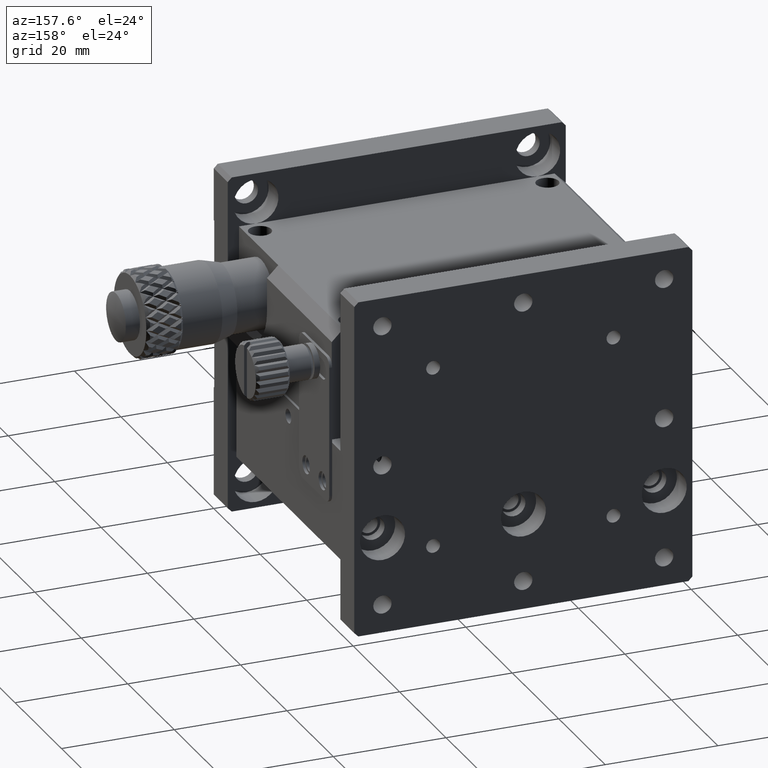
[diagram: clean part render]
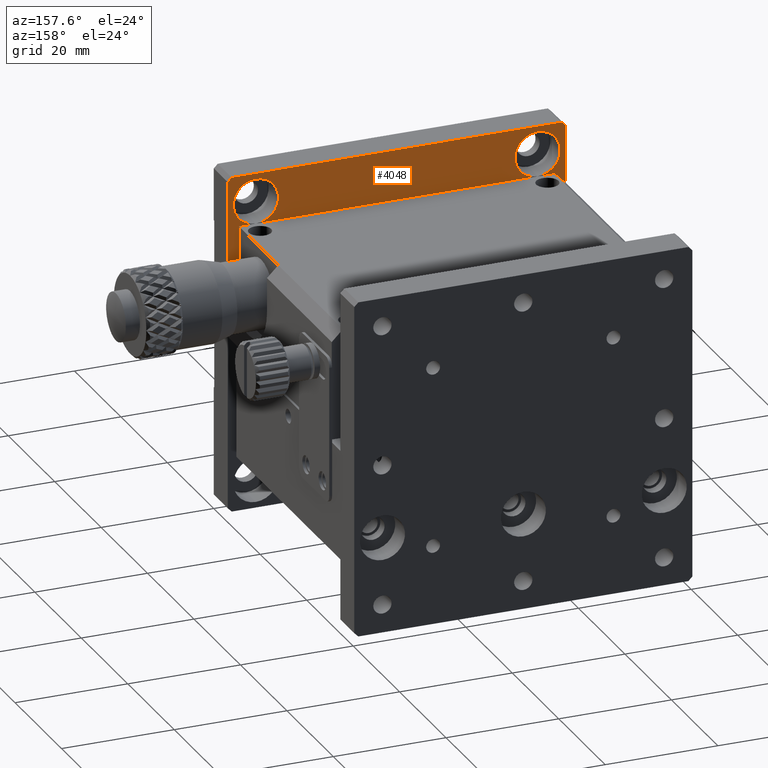
[diagram: same view with one face highlighted and labeled with its STEP entity id]
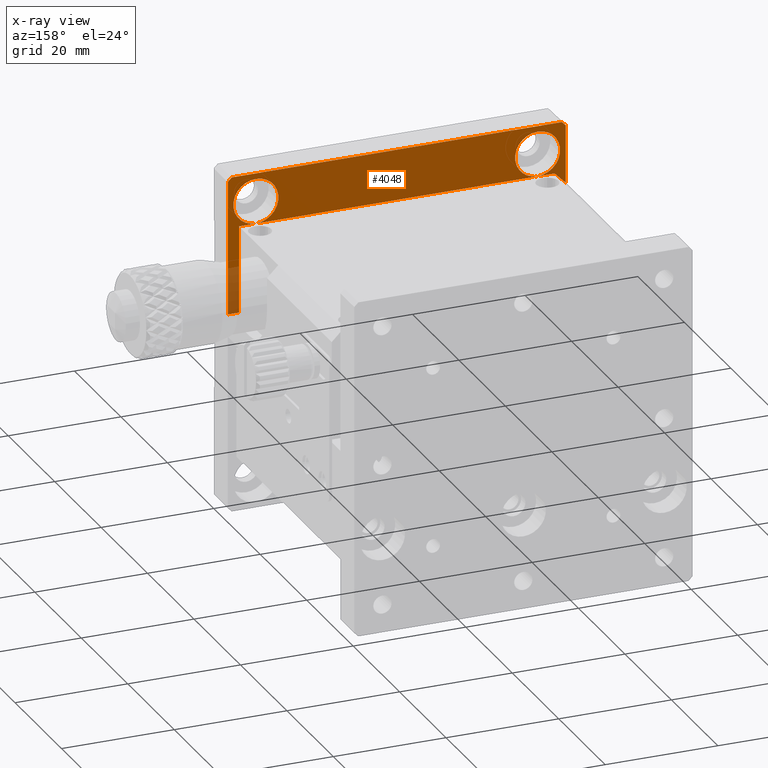
[diagram: x-ray of the same camera — body ghosted, the highlighted face saturated]
A machine part, auxiliary view. The second image highlights one B-rep face of the part: STEP entity #4048.
The next image is the same camera in x-ray: the body ghosted, the highlighted face saturated — about 3% of this face is hidden behind the body in this view.
In plain terms, the highlighted planar face has unit normal (0, 1, 0).
Its self-contained STEP definition (entity closure, byte-faithful):
#43 = EDGE_CURVE ( 'NONE', #24617, #12049, #9870, .T. ) ;
#1054 = VERTEX_POINT ( 'NONE', #20090 ) ;
#1390 = CARTESIAN_POINT ( 'NONE',  ( 1.999999999999970024, 6.000000000000000000, -9.000000000000001776 ) ) ;
#1811 = LINE ( 'NONE', #1390, #11401 ) ;
#1817 = CARTESIAN_POINT ( 'NONE',  ( 0.7099999999999999645, 6.000000000000000000, 5.421010862427511077E-17 ) ) ;
#2042 = CARTESIAN_POINT ( 'NONE',  ( 60.00000000000000000, 6.000000000000000000, -0.7099999999999999645 ) ) ;
#2152 = LINE ( 'NONE', #21208, #17307 ) ;
#2483 = CARTESIAN_POINT ( 'NONE',  ( 0.000000000000000000, 6.000000000000000000, -24.50000000000000000 ) ) ;
#2704 = DIRECTION ( 'NONE',  ( 0.000000000000000000, -0.000000000000000000, 1.000000000000000000 ) ) ;
#3327 = LINE ( 'NONE', #20554, #23313 ) ;
#4048 = ADVANCED_FACE ( 'NONE', ( #14205, #6013, #12673 ), #27042, .T. ) ;
#4438 = LINE ( 'NONE', #2483, #18677 ) ;
#5033 = EDGE_CURVE ( 'NONE', #7636, #6021, #3327, .T. ) ;
#5160 = CARTESIAN_POINT ( 'NONE',  ( 59.28999999999999915, 6.000000000000000000, 2.710505431213749992E-17 ) ) ;
#5217 = EDGE_CURVE ( 'NONE', #5559, #22009, #6019, .T. ) ;
#5559 = VERTEX_POINT ( 'NONE', #21920 ) ;
#5787 = VECTOR ( 'NONE', #7748, 1000.000000000000114 ) ;
#6013 = FACE_BOUND ( 'NONE', #25794, .T. ) ;
#6019 = LINE ( 'NONE', #14493, #9797 ) ;
#6021 = VERTEX_POINT ( 'NONE', #16210 ) ;
#6283 = CARTESIAN_POINT ( 'NONE',  ( 0.000000000000000000, 6.000000000000000000, -11.00000000000000000 ) ) ;
#6650 = EDGE_CURVE ( 'NONE', #26270, #5559, #25143, .T. ) ;
#7385 = AXIS2_PLACEMENT_3D ( 'NONE', #27091, #26810, #20880 ) ;
#7632 = EDGE_CURVE ( 'NONE', #22009, #24617, #11921, .T. ) ;
#7636 = VERTEX_POINT ( 'NONE', #18950 ) ;
#7748 = DIRECTION ( 'NONE',  ( 0.7071067811865452413, 0.000000000000000000, -0.7071067811865499042 ) ) ;
#7862 = DIRECTION ( 'NONE',  ( 0.7071067811865470176, 0.000000000000000000, 0.7071067811865481278 ) ) ;
#9216 = VECTOR ( 'NONE', #14577, 1000.000000000000000 ) ;
#9218 = LINE ( 'NONE', #15407, #20842 ) ;
#9274 = ORIENTED_EDGE ( 'NONE', *, *, #20244, .T. ) ;
#9442 = VERTEX_POINT ( 'NONE', #12684 ) ;
#9797 = VECTOR ( 'NONE', #7862, 1000.000000000000000 ) ;
#9870 = LINE ( 'NONE', #12129, #5787 ) ;
#11105 = EDGE_CURVE ( 'NONE', #11710, #11710, #12369, .T. ) ;
#11125 = DIRECTION ( 'NONE',  ( -1.000000000000000000, -0.000000000000000000, 0.000000000000000000 ) ) ;
#11293 = ORIENTED_EDGE ( 'NONE', *, *, #16885, .T. ) ;
#11401 = VECTOR ( 'NONE', #14511, 1000.000000000000000 ) ;
#11710 = VERTEX_POINT ( 'NONE', #22552 ) ;
#11878 = ORIENTED_EDGE ( 'NONE', *, *, #5217, .T. ) ;
#11921 = LINE ( 'NONE', #18814, #24286 ) ;
#12049 = VERTEX_POINT ( 'NONE', #2042 ) ;
#12093 = DIRECTION ( 'NONE',  ( 0.000000000000000000, -0.000000000000000000, 1.000000000000000000 ) ) ;
#12129 = CARTESIAN_POINT ( 'NONE',  ( 59.28999999999999915, 6.000000000000000000, 0.000000000000000000 ) ) ;
#12178 = DIRECTION ( 'NONE',  ( 0.000000000000000000, 0.000000000000000000, -1.000000000000000000 ) ) ;
#12369 = CIRCLE ( 'NONE', #7385, 4.000000000000022204 ) ;
#12673 = FACE_OUTER_BOUND ( 'NONE', #18596, .T. ) ;
#12684 = CARTESIAN_POINT ( 'NONE',  ( 58.00000000000000000, 6.000000000000000000, -24.50000000000000000 ) ) ;
#12708 = VERTEX_POINT ( 'NONE', #24346 ) ;
#13799 = DIRECTION ( 'NONE',  ( -1.000000000000000000, -0.000000000000000000, 0.000000000000000000 ) ) ;
#14094 = ORIENTED_EDGE ( 'NONE', *, *, #25784, .T. ) ;
#14205 = FACE_BOUND ( 'NONE', #24687, .T. ) ;
#14493 = CARTESIAN_POINT ( 'NONE',  ( 0.000000000000000000, 6.000000000000000000, -0.7100000000000009637 ) ) ;
#14511 = DIRECTION ( 'NONE',  ( -0.7071067811865425767, 0.000000000000000000, -0.7071067811865525687 ) ) ;
#14536 = ORIENTED_EDGE ( 'NONE', *, *, #7632, .T. ) ;
#14577 = DIRECTION ( 'NONE',  ( 0.000000000000000000, -0.000000000000000000, 1.000000000000000000 ) ) ;
#15407 = CARTESIAN_POINT ( 'NONE',  ( 58.00000000000000000, 6.000000000000000000, 0.000000000000000000 ) ) ;
#16210 = CARTESIAN_POINT ( 'NONE',  ( 1.999999999999970024, 6.000000000000000000, -9.000000000000001776 ) ) ;
#16805 = CARTESIAN_POINT ( 'NONE',  ( 5.000000000000000000, 6.000000000000000000, -5.000000000000000000 ) ) ;
#16885 = EDGE_CURVE ( 'NONE', #1054, #1054, #25270, .T. ) ;
#17307 = VECTOR ( 'NONE', #18804, 1000.000000000000000 ) ;
#17448 = ORIENTED_EDGE ( 'NONE', *, *, #27722, .T. ) ;
#17607 = AXIS2_PLACEMENT_3D ( 'NONE', #16805, #19059, #12178 ) ;
#17645 = ORIENTED_EDGE ( 'NONE', *, *, #6650, .T. ) ;
#18596 = EDGE_LOOP ( 'NONE', ( #14536, #22473, #9274, #19714, #17448, #24046, #14094, #17645, #11878 ) ) ;
#18656 = EDGE_CURVE ( 'NONE', #12708, #9442, #4438, .T. ) ;
#18677 = VECTOR ( 'NONE', #11125, 1000.000000000000000 ) ;
#18804 = DIRECTION ( 'NONE',  ( -0.000000000000000000, 0.000000000000000000, -1.000000000000000000 ) ) ;
#18814 = CARTESIAN_POINT ( 'NONE',  ( 0.000000000000000000, 6.000000000000000000, 1.084202172485499997E-16 ) ) ;
#18950 = CARTESIAN_POINT ( 'NONE',  ( 58.00000000000000000, 6.000000000000000000, -9.000000000000001776 ) ) ;
#18985 = DIRECTION ( 'NONE',  ( 0.000000000000000000, 1.000000000000000000, 0.000000000000000000 ) ) ;
#19059 = DIRECTION ( 'NONE',  ( 0.000000000000000000, -1.000000000000000000, 0.000000000000000000 ) ) ;
#19714 = ORIENTED_EDGE ( 'NONE', *, *, #18656, .T. ) ;
#20090 = CARTESIAN_POINT ( 'NONE',  ( 5.000000000000000000, 6.000000000000000000, -9.000000000000001776 ) ) ;
#20244 = EDGE_CURVE ( 'NONE', #12049, #12708, #2152, .T. ) ;
#20509 = DIRECTION ( 'NONE',  ( 1.000000000000000000, 0.000000000000000000, -0.000000000000000000 ) ) ;
#20554 = CARTESIAN_POINT ( 'NONE',  ( 0.000000000000000000, 6.000000000000000000, -9.000000000000001776 ) ) ;
#20842 = VECTOR ( 'NONE', #2704, 1000.000000000000000 ) ;
#20880 = DIRECTION ( 'NONE',  ( 0.000000000000000000, 0.000000000000000000, -1.000000000000000000 ) ) ;
#21208 = CARTESIAN_POINT ( 'NONE',  ( 60.00000000000000000, 6.000000000000000000, 0.000000000000000000 ) ) ;
#21920 = CARTESIAN_POINT ( 'NONE',  ( 0.000000000000000000, 6.000000000000000000, -0.7100000000000016298 ) ) ;
#22009 = VERTEX_POINT ( 'NONE', #1817 ) ;
#22473 = ORIENTED_EDGE ( 'NONE', *, *, #43, .T. ) ;
#22552 = CARTESIAN_POINT ( 'NONE',  ( 55.00000000000000000, 6.000000000000000000, -9.000000000000021316 ) ) ;
#23232 = CARTESIAN_POINT ( 'NONE',  ( 0.000000000000000000, 6.000000000000000000, 0.000000000000000000 ) ) ;
#23313 = VECTOR ( 'NONE', #13799, 1000.000000000000000 ) ;
#24046 = ORIENTED_EDGE ( 'NONE', *, *, #5033, .T. ) ;
#24253 = AXIS2_PLACEMENT_3D ( 'NONE', #23232, #18985, #12093 ) ;
#24286 = VECTOR ( 'NONE', #20509, 1000.000000000000000 ) ;
#24346 = CARTESIAN_POINT ( 'NONE',  ( 60.00000000000000000, 6.000000000000000000, -24.50000000000000000 ) ) ;
#24617 = VERTEX_POINT ( 'NONE', #5160 ) ;
#24687 = EDGE_LOOP ( 'NONE', ( #11293 ) ) ;
#25143 = LINE ( 'NONE', #27275, #9216 ) ;
#25270 = CIRCLE ( 'NONE', #17607, 4.000000000000000888 ) ;
#25376 = ORIENTED_EDGE ( 'NONE', *, *, #11105, .T. ) ;
#25784 = EDGE_CURVE ( 'NONE', #6021, #26270, #1811, .T. ) ;
#25794 = EDGE_LOOP ( 'NONE', ( #25376 ) ) ;
#26270 = VERTEX_POINT ( 'NONE', #6283 ) ;
#26810 = DIRECTION ( 'NONE',  ( 0.000000000000000000, -1.000000000000000000, 0.000000000000000000 ) ) ;
#27042 = PLANE ( 'NONE',  #24253 ) ;
#27091 = CARTESIAN_POINT ( 'NONE',  ( 55.00000000000000000, 6.000000000000000000, -5.000000000000000000 ) ) ;
#27275 = CARTESIAN_POINT ( 'NONE',  ( 0.000000000000000000, 6.000000000000000000, 0.000000000000000000 ) ) ;
#27722 = EDGE_CURVE ( 'NONE', #9442, #7636, #9218, .T. ) ;